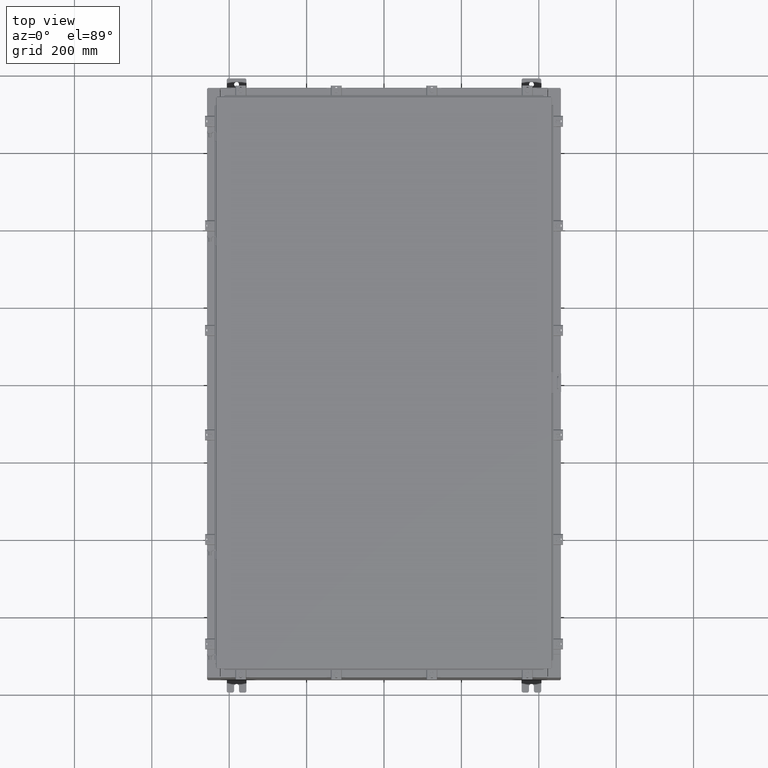
[diagram: clean part render]
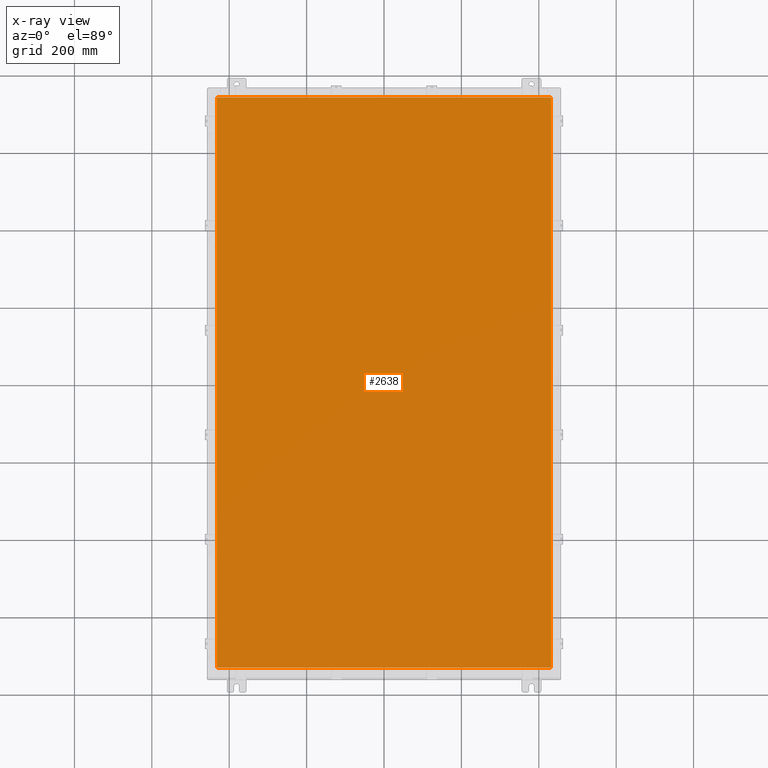
[diagram: x-ray — body ghosted, one internal face saturated and labeled with its STEP entity id]
A machine part, top view, then the same camera in x-ray: the body is ghosted and one INTERNAL B-rep face — a face not visible from any outside direction — is saturated and labeled: STEP entity #2638.
In plain terms, the highlighted planar face has unit normal (0, 0, -1).
Its self-contained STEP definition (entity closure, byte-faithful):
#337 = ORIENTED_EDGE ( 'NONE', *, *, #9112, .F. ) ;
#2638 = ADVANCED_FACE ( 'NONE', ( #23186 ), #19063, .T. ) ;
#2710 = DIRECTION ( 'NONE',  ( 0.0000000000000000000, 0.0000000000000000000, -1.000000000000000000 ) ) ;
#2902 = EDGE_CURVE ( 'NONE', #9803, #9230, #18469, .T. ) ;
#3084 = DIRECTION ( 'NONE',  ( -1.000000000000000000, 0.0000000000000000000, -0.0000000000000000000 ) ) ;
#3314 = CARTESIAN_POINT ( 'NONE',  ( 0.0000000000000000000, 0.0000000000000000000, -0.07470000000000000300 ) ) ;
#6434 = EDGE_CURVE ( 'NONE', #9230, #14301, #14948, .T. ) ;
#6438 = VECTOR ( 'NONE', #18705, 39.37007874015748100 ) ;
#7278 = CARTESIAN_POINT ( 'NONE',  ( 16.99030000000000500, 29.00630000000000000, -0.07470000000000000300 ) ) ;
#7775 = LINE ( 'NONE', #25110, #13414 ) ;
#8605 = VECTOR ( 'NONE', #18764, 39.37007874015748100 ) ;
#9112 = EDGE_CURVE ( 'NONE', #14301, #20284, #16547, .T. ) ;
#9230 = VERTEX_POINT ( 'NONE', #12059 ) ;
#9803 = VERTEX_POINT ( 'NONE', #7278 ) ;
#10630 = CARTESIAN_POINT ( 'NONE',  ( -16.99029999999999800, -29.00630000000000300, -0.07470000000000000300 ) ) ;
#10936 = AXIS2_PLACEMENT_3D ( 'NONE', #3314, #2710, #3084 ) ;
#11609 = CARTESIAN_POINT ( 'NONE',  ( 16.99030000000000500, -29.00630000000000300, -0.07470000000000000300 ) ) ;
#12059 = CARTESIAN_POINT ( 'NONE',  ( -16.99029999999999800, 29.00630000000000000, -0.07470000000000000300 ) ) ;
#12517 = EDGE_CURVE ( 'NONE', #20284, #9803, #7775, .T. ) ;
#13414 = VECTOR ( 'NONE', #18737, 39.37007874015748100 ) ;
#14301 = VERTEX_POINT ( 'NONE', #10630 ) ;
#14948 = LINE ( 'NONE', #19282, #8605 ) ;
#15909 = ORIENTED_EDGE ( 'NONE', *, *, #2902, .F. ) ;
#16547 = LINE ( 'NONE', #18916, #22249 ) ;
#18469 = LINE ( 'NONE', #19693, #6438 ) ;
#18705 = DIRECTION ( 'NONE',  ( -1.000000000000000000, -0.0000000000000000000, -0.0000000000000000000 ) ) ;
#18710 = DIRECTION ( 'NONE',  ( 1.000000000000000000, -0.0000000000000000000, -0.0000000000000000000 ) ) ;
#18737 = DIRECTION ( 'NONE',  ( 0.0000000000000000000, 1.000000000000000000, 0.0000000000000000000 ) ) ;
#18764 = DIRECTION ( 'NONE',  ( 0.0000000000000000000, -1.000000000000000000, 0.0000000000000000000 ) ) ;
#18916 = CARTESIAN_POINT ( 'NONE',  ( -16.99029999999999400, -29.00630000000000700, -0.07469999999999804600 ) ) ;
#19063 = PLANE ( 'NONE',  #10936 ) ;
#19231 = ORIENTED_EDGE ( 'NONE', *, *, #12517, .F. ) ;
#19282 = CARTESIAN_POINT ( 'NONE',  ( -16.99029999999999800, 29.00629999999998900, -0.07470000000000019700 ) ) ;
#19693 = CARTESIAN_POINT ( 'NONE',  ( 16.99030000000000100, 29.00630000000000300, -0.07469999999999804600 ) ) ;
#20284 = VERTEX_POINT ( 'NONE', #11609 ) ;
#22249 = VECTOR ( 'NONE', #18710, 39.37007874015748100 ) ;
#22287 = EDGE_LOOP ( 'NONE', ( #19231, #337, #26401, #15909 ) ) ;
#23186 = FACE_OUTER_BOUND ( 'NONE', #22287, .T. ) ;
#25110 = CARTESIAN_POINT ( 'NONE',  ( 16.99030000000000500, -29.00630000000000000, -0.07470000000000019700 ) ) ;
#26401 = ORIENTED_EDGE ( 'NONE', *, *, #6434, .F. ) ;